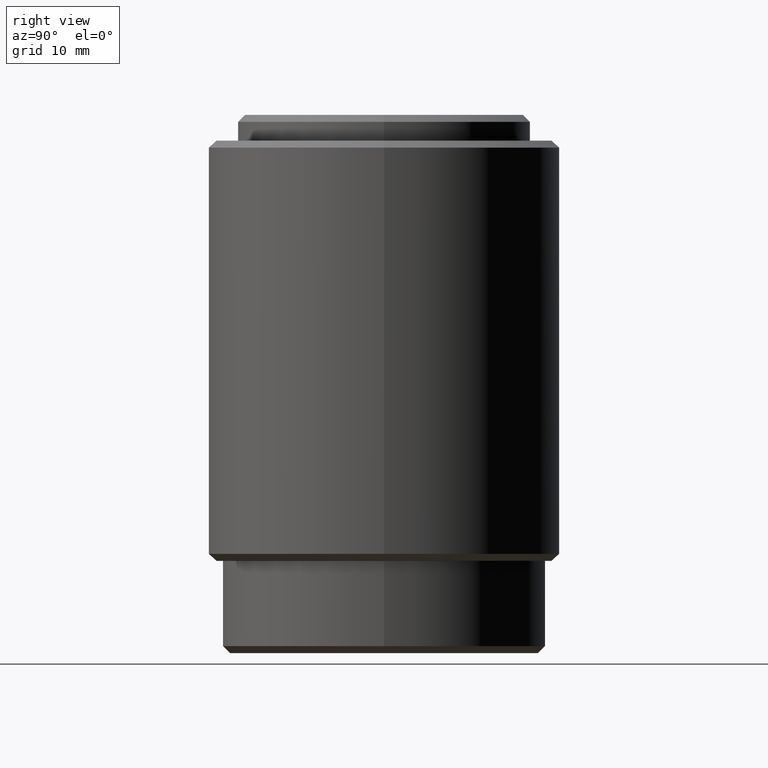
[diagram: clean part render]
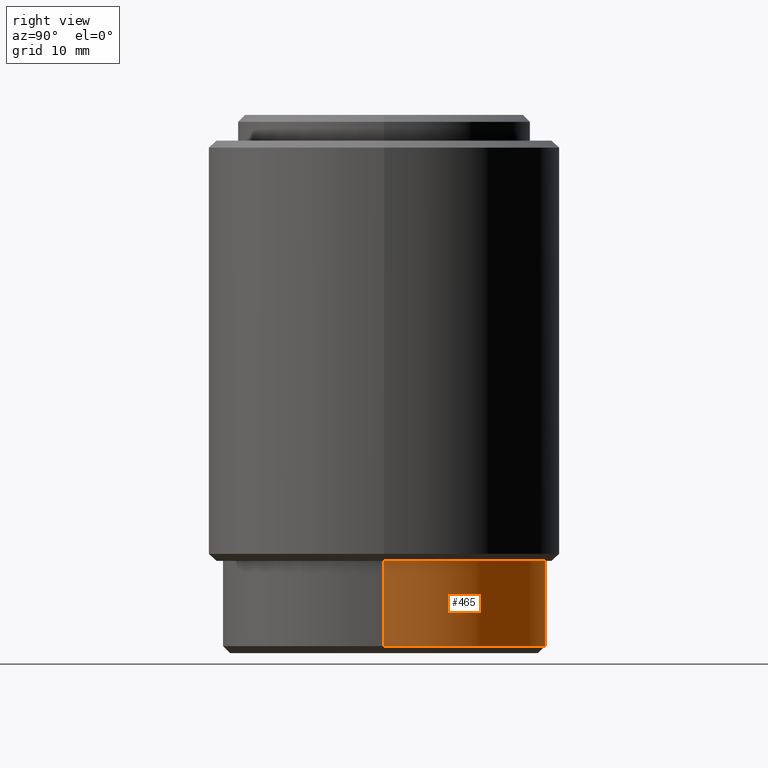
[diagram: same view with one face highlighted and labeled with its STEP entity id]
A machine part, right view. The second image highlights one B-rep face of the part: STEP entity #465.
In plain terms, the highlighted cylindrical surface (partial cylindrical patch) has radius 13.85 mm, axis along (-0, -0, -1).
Its self-contained STEP definition (entity closure, byte-faithful):
#16 = AXIS2_PLACEMENT_3D ( 'NONE', #81, #282, #36 ) ;
#29 = CYLINDRICAL_SURFACE ( 'NONE', #301, 13.85000000000000000 ) ;
#31 = CARTESIAN_POINT ( 'NONE',  ( -13.85000000000000000, 0.0000000000000000000, 0.6000000000000015300 ) ) ;
#33 = CARTESIAN_POINT ( 'NONE',  ( -13.85000000000000000, 0.0000000000000000000, 7.900000000000000400 ) ) ;
#36 = DIRECTION ( 'NONE',  ( 1.000000000000000000, 0.0000000000000000000, 0.0000000000000000000 ) ) ;
#60 = VECTOR ( 'NONE', #529, 1000.000000000000000 ) ;
#62 = VERTEX_POINT ( 'NONE', #472 ) ;
#75 = DIRECTION ( 'NONE',  ( 1.000000000000000000, 0.0000000000000000000, 0.0000000000000000000 ) ) ;
#81 = CARTESIAN_POINT ( 'NONE',  ( 0.0000000000000000000, 0.0000000000000000000, 0.6000000000000015300 ) ) ;
#98 = VERTEX_POINT ( 'NONE', #412 ) ;
#117 = EDGE_CURVE ( 'NONE', #62, #308, #226, .T. ) ;
#131 = DIRECTION ( 'NONE',  ( -0.0000000000000000000, -0.0000000000000000000, -1.000000000000000000 ) ) ;
#135 = ORIENTED_EDGE ( 'NONE', *, *, #302, .F. ) ;
#172 = CARTESIAN_POINT ( 'NONE',  ( 0.0000000000000000000, 0.0000000000000000000, 7.900000000000000400 ) ) ;
#180 = ORIENTED_EDGE ( 'NONE', *, *, #330, .T. ) ;
#208 = DIRECTION ( 'NONE',  ( -0.0000000000000000000, -0.0000000000000000000, -1.000000000000000000 ) ) ;
#226 = CIRCLE ( 'NONE', #16, 13.85000000000000000 ) ;
#261 = FACE_OUTER_BOUND ( 'NONE', #284, .T. ) ;
#267 = ORIENTED_EDGE ( 'NONE', *, *, #117, .T. ) ;
#282 = DIRECTION ( 'NONE',  ( -0.0000000000000000000, -0.0000000000000000000, 1.000000000000000000 ) ) ;
#284 = EDGE_LOOP ( 'NONE', ( #135, #180, #267, #469 ) ) ;
#285 = LINE ( 'NONE', #312, #424 ) ;
#301 = AXIS2_PLACEMENT_3D ( 'NONE', #442, #208, #365 ) ;
#302 = EDGE_CURVE ( 'NONE', #345, #98, #395, .T. ) ;
#308 = VERTEX_POINT ( 'NONE', #31 ) ;
#312 = CARTESIAN_POINT ( 'NONE',  ( 13.85000000000000000, 1.696135816819084000E-015, 7.900000000000000400 ) ) ;
#317 = CARTESIAN_POINT ( 'NONE',  ( 13.85000000000000000, 1.696135816819084000E-015, 7.900000000000000400 ) ) ;
#330 = EDGE_CURVE ( 'NONE', #345, #62, #285, .T. ) ;
#345 = VERTEX_POINT ( 'NONE', #317 ) ;
#354 = EDGE_CURVE ( 'NONE', #98, #308, #381, .T. ) ;
#365 = DIRECTION ( 'NONE',  ( -1.000000000000000000, 0.0000000000000000000, 0.0000000000000000000 ) ) ;
#381 = LINE ( 'NONE', #33, #60 ) ;
#395 = CIRCLE ( 'NONE', #413, 13.85000000000000000 ) ;
#412 = CARTESIAN_POINT ( 'NONE',  ( -13.85000000000000000, 0.0000000000000000000, 7.900000000000000400 ) ) ;
#413 = AXIS2_PLACEMENT_3D ( 'NONE', #172, #457, #75 ) ;
#424 = VECTOR ( 'NONE', #131, 1000.000000000000000 ) ;
#442 = CARTESIAN_POINT ( 'NONE',  ( 0.0000000000000000000, 0.0000000000000000000, 7.900000000000000400 ) ) ;
#457 = DIRECTION ( 'NONE',  ( 0.0000000000000000000, 0.0000000000000000000, 1.000000000000000000 ) ) ;
#465 = ADVANCED_FACE ( 'NONE', ( #261 ), #29, .T. ) ;
#469 = ORIENTED_EDGE ( 'NONE', *, *, #354, .F. ) ;
#472 = CARTESIAN_POINT ( 'NONE',  ( 13.85000000000000000, 1.696135816819084000E-015, 0.6000000000000015300 ) ) ;
#529 = DIRECTION ( 'NONE',  ( -0.0000000000000000000, -0.0000000000000000000, -1.000000000000000000 ) ) ;